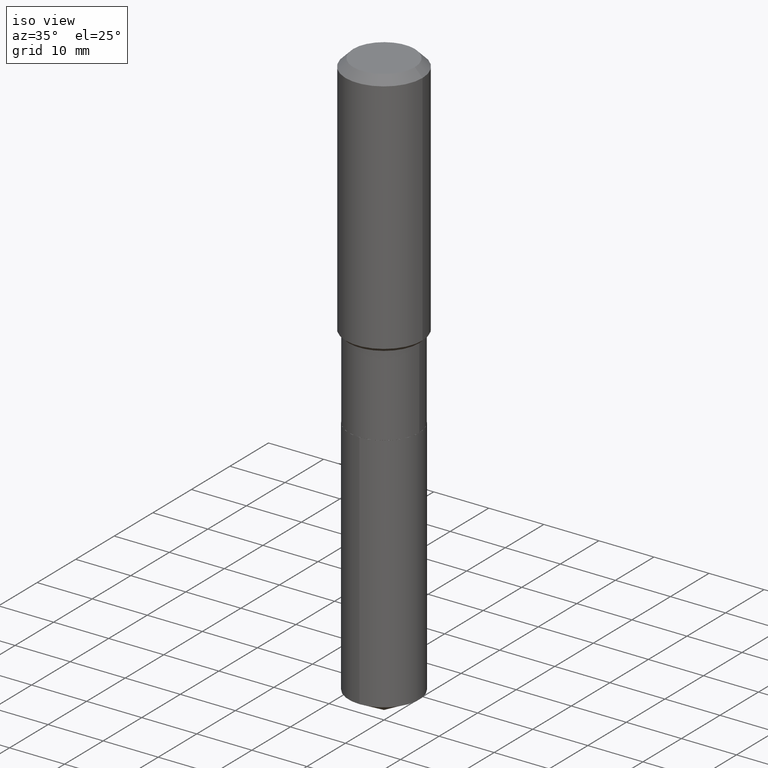
[diagram: clean part render]
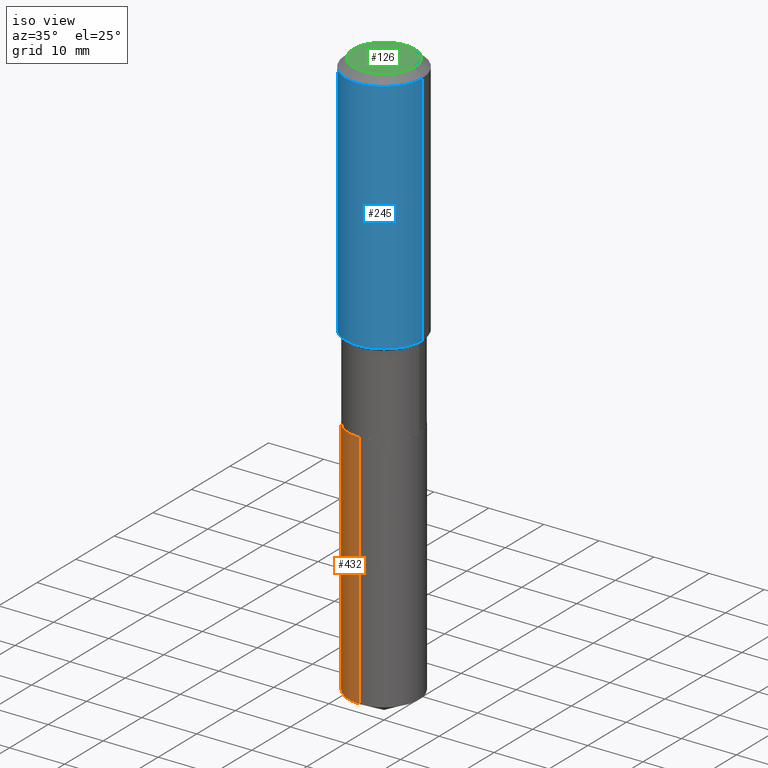
[diagram: same view with three faces highlighted in distinct colors, each labeled with its STEP entity id]
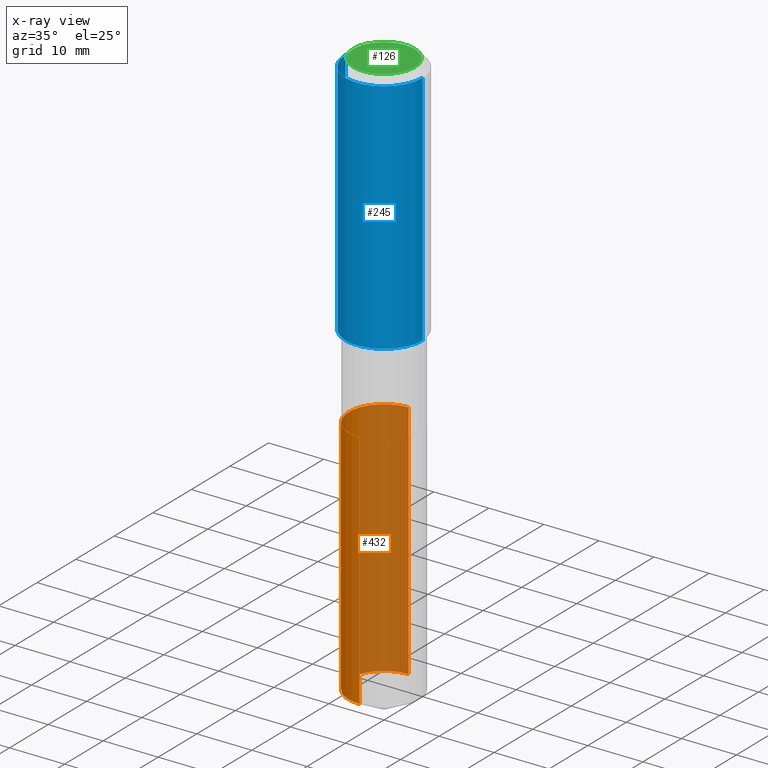
[diagram: x-ray of the same camera — body ghosted, the three highlighted faces saturated]
A machine part, iso view with three faces highlighted in distinct colors.
The next image is the same camera in x-ray (body ghosted, the three faces saturated) — at least one of them is partly hidden behind the body in this view.
Their STEP definitions:

[orange] entity #432 — the highlighted cylindrical surface (partial cylindrical patch) has radius 6.3995 mm, axis along (-0, 0, 1).
#1 = DIRECTION ( 'NONE',  ( -6.982962677686265922E-15, -1.000000000000000000, 4.337127197720600657E-15 ) ) ;
#8 = CARTESIAN_POINT ( 'NONE',  ( -1.759357446642997213E-15, -0.2519500000000082229, -2.354299999999999393 ) ) ;
#19 = EDGE_CURVE ( 'NONE', #355, #283, #35, .T. ) ;
#26 = DIRECTION ( 'NONE',  ( -2.445732278377951745E-29, 3.491104031667128479E-15, 1.000000000000000000 ) ) ;
#35 = CIRCLE ( 'NONE', #353, 0.2519500000000000073 ) ;
#38 = DIRECTION ( 'NONE',  ( -2.445732278377951745E-29, 3.491104031667128479E-15, 1.000000000000000000 ) ) ;
#67 = AXIS2_PLACEMENT_3D ( 'NONE', #373, #38, #1 ) ;
#95 = ORIENTED_EDGE ( 'NONE', *, *, #19, .F. ) ;
#109 = DIRECTION ( 'NONE',  ( -2.445732278377951745E-29, 3.491104031667128479E-15, 1.000000000000000000 ) ) ;
#113 = DIRECTION ( 'NONE',  ( -2.445732278377952025E-29, 3.491104031667128479E-15, 1.000000000000000000 ) ) ;
#140 = CARTESIAN_POINT ( 'NONE',  ( 5.757367210401668198E-29, -8.219994516038419081E-15, -2.354300000000000281 ) ) ;
#141 = VERTEX_POINT ( 'NONE', #301 ) ;
#148 = CARTESIAN_POINT ( 'NONE',  ( 1.790212422747629662E-15, 0.2519499999999917361, -2.354300000000001170 ) ) ;
#161 = CARTESIAN_POINT ( 'NONE',  ( 1.790212422747672261E-15, 0.2519499999999917361, -2.354300000000001170 ) ) ;
#167 = FACE_OUTER_BOUND ( 'NONE', #346, .T. ) ;
#171 = EDGE_CURVE ( 'NONE', #327, #283, #405, .T. ) ;
#203 = VECTOR ( 'NONE', #413, 39.37007874015748143 ) ;
#221 = ORIENTED_EDGE ( 'NONE', *, *, #293, .F. ) ;
#227 = CARTESIAN_POINT ( 'NONE',  ( -1.759357446642997213E-15, -0.2519500000000082229, -2.354299999999999393 ) ) ;
#232 = CARTESIAN_POINT ( 'NONE',  ( -1.759357446642955206E-15, -0.2519500000000142181, -4.078635808692890663 ) ) ;
#252 = CYLINDRICAL_SURFACE ( 'NONE', #268, 0.2519500000000000073 ) ;
#256 = DIRECTION ( 'NONE',  ( -6.982962677686265922E-15, -1.000000000000000000, 3.252845398290450098E-15 ) ) ;
#267 = VECTOR ( 'NONE', #113, 39.37007874015748143 ) ;
#268 = AXIS2_PLACEMENT_3D ( 'NONE', #336, #109, #333 ) ;
#283 = VERTEX_POINT ( 'NONE', #8 ) ;
#293 = EDGE_CURVE ( 'NONE', #141, #355, #488, .T. ) ;
#301 = CARTESIAN_POINT ( 'NONE',  ( 1.790212422747671867E-15, 0.2519499999999857409, -4.078635808692893328 ) ) ;
#327 = VERTEX_POINT ( 'NONE', #232 ) ;
#329 = EDGE_CURVE ( 'NONE', #141, #327, #435, .T. ) ;
#333 = DIRECTION ( 'NONE',  ( -6.982962677686265922E-15, -1.000000000000000000, 3.252845398290450098E-15 ) ) ;
#336 = CARTESIAN_POINT ( 'NONE',  ( 5.757367210401668198E-29, -8.219994516038419081E-15, -2.354300000000000281 ) ) ;
#346 = EDGE_LOOP ( 'NONE', ( #221, #375, #431, #95 ) ) ;
#353 = AXIS2_PLACEMENT_3D ( 'NONE', #140, #26, #256 ) ;
#355 = VERTEX_POINT ( 'NONE', #161 ) ;
#373 = CARTESIAN_POINT ( 'NONE',  ( 9.974630956484820377E-29, -1.423983020971417209E-14, -4.078635808692891551 ) ) ;
#375 = ORIENTED_EDGE ( 'NONE', *, *, #329, .T. ) ;
#405 = LINE ( 'NONE', #227, #203 ) ;
#413 = DIRECTION ( 'NONE',  ( -2.445732278377952025E-29, 3.491104031667128479E-15, 1.000000000000000000 ) ) ;
#431 = ORIENTED_EDGE ( 'NONE', *, *, #171, .T. ) ;
#432 = ADVANCED_FACE ( 'NONE', ( #167 ), #252, .T. ) ;
#435 = CIRCLE ( 'NONE', #67, 0.2519500000000000073 ) ;
#488 = LINE ( 'NONE', #148, #267 ) ;

[blue] entity #245 — the highlighted cylindrical surface (partial cylindrical patch) has radius 7.0002 mm, axis along (-0, 0, 1).
#21 = ORIENTED_EDGE ( 'NONE', *, *, #366, .F. ) ;
#23 = DIRECTION ( 'NONE',  ( -2.445468806185136877E-29, 3.491481338843145188E-15, 1.000000000000000000 ) ) ;
#29 = CARTESIAN_POINT ( 'NONE',  ( 0.2756000000000002337, -8.038612060485511055E-15, -1.751149999999999984 ) ) ;
#47 = VERTEX_POINT ( 'NONE', #397 ) ;
#50 = VERTEX_POINT ( 'NONE', #29 ) ;
#61 = AXIS2_PLACEMENT_3D ( 'NONE', #313, #189, #407 ) ;
#69 = EDGE_CURVE ( 'NONE', #150, #50, #480, .T. ) ;
#90 = LINE ( 'NONE', #390, #251 ) ;
#94 = AXIS2_PLACEMENT_3D ( 'NONE', #270, #343, #381 ) ;
#103 = VECTOR ( 'NONE', #130, 39.37007874015748143 ) ;
#105 = CARTESIAN_POINT ( 'NONE',  ( 4.282382699951101703E-29, -6.114107546515174524E-15, -1.751149999999999984 ) ) ;
#121 = ORIENTED_EDGE ( 'NONE', *, *, #296, .F. ) ;
#122 = LINE ( 'NONE', #318, #103 ) ;
#130 = DIRECTION ( 'NONE',  ( -2.445468806185136877E-29, 3.491481338843145188E-15, 1.000000000000000000 ) ) ;
#150 = VERTEX_POINT ( 'NONE', #400 ) ;
#189 = DIRECTION ( 'NONE',  ( -2.445468806185136597E-29, 3.491481338843145583E-15, 1.000000000000000000 ) ) ;
#191 = CARTESIAN_POINT ( 'NONE',  ( 0.2756000000000000116, -2.116954965367370658E-15, -0.05512000000000035621 ) ) ;
#239 = CYLINDRICAL_SURFACE ( 'NONE', #94, 0.2756000000000001227 ) ;
#245 = ADVANCED_FACE ( 'NONE', ( #341 ), #239, .T. ) ;
#251 = VECTOR ( 'NONE', #23, 39.37007874015748143 ) ;
#270 = CARTESIAN_POINT ( 'NONE',  ( 0.000000000000000000, 0.000000000000000000, 0.000000000000000000 ) ) ;
#271 = ORIENTED_EDGE ( 'NONE', *, *, #69, .T. ) ;
#285 = CIRCLE ( 'NONE', #61, 0.2756000000000000116 ) ;
#296 = EDGE_CURVE ( 'NONE', #47, #325, #285, .T. ) ;
#313 = CARTESIAN_POINT ( 'NONE',  ( 1.347942405969256063E-30, -1.924504513970354330E-16, -0.05512000000000035621 ) ) ;
#318 = CARTESIAN_POINT ( 'NONE',  ( -0.2756000000000001227, 1.958255779754836984E-15, -1.355658510874252567E-29 ) ) ;
#325 = VERTEX_POINT ( 'NONE', #191 ) ;
#330 = DIRECTION ( 'NONE',  ( 1.000000000000000000, -6.982962677686267499E-15, 0.000000000000000000 ) ) ;
#340 = AXIS2_PLACEMENT_3D ( 'NONE', #105, #447, #330 ) ;
#341 = FACE_OUTER_BOUND ( 'NONE', #450, .T. ) ;
#343 = DIRECTION ( 'NONE',  ( -2.445468806185136597E-29, 3.491481338843145583E-15, 1.000000000000000000 ) ) ;
#366 = EDGE_CURVE ( 'NONE', #150, #47, #122, .T. ) ;
#381 = DIRECTION ( 'NONE',  ( 1.000000000000000000, -6.982962677686267499E-15, 4.876176775795935793E-29 ) ) ;
#390 = CARTESIAN_POINT ( 'NONE',  ( 0.2756000000000001227, -1.924504513970336137E-15, 1.343874319409360548E-29 ) ) ;
#397 = CARTESIAN_POINT ( 'NONE',  ( -0.2756000000000000116, -1.195023219201267736E-15, -0.05512000000000035621 ) ) ;
#400 = CARTESIAN_POINT ( 'NONE',  ( -0.2756000000000002337, -4.155851766760337145E-15, -1.751149999999999984 ) ) ;
#407 = DIRECTION ( 'NONE',  ( 1.000000000000000000, -6.982962677686265922E-15, 0.000000000000000000 ) ) ;
#423 = EDGE_CURVE ( 'NONE', #50, #325, #90, .T. ) ;
#447 = DIRECTION ( 'NONE',  ( -2.445468806185136597E-29, 3.491481338843145583E-15, 1.000000000000000000 ) ) ;
#450 = EDGE_LOOP ( 'NONE', ( #21, #271, #457, #121 ) ) ;
#457 = ORIENTED_EDGE ( 'NONE', *, *, #423, .T. ) ;
#480 = CIRCLE ( 'NONE', #340, 0.2756000000000002337 ) ;

[green] entity #126 — the highlighted planar face has unit normal (0, -0, -1).
#4 = CIRCLE ( 'NONE', #15, 0.2204800000000000093 ) ;
#5 = ORIENTED_EDGE ( 'NONE', *, *, #376, .T. ) ;
#13 = AXIS2_PLACEMENT_3D ( 'NONE', #359, #68, #222 ) ;
#15 = AXIS2_PLACEMENT_3D ( 'NONE', #281, #56, #207 ) ;
#31 = CARTESIAN_POINT ( 'NONE',  ( -4.719860820353095009E-47, 6.738710358733624243E-33, 1.930043355456227170E-18 ) ) ;
#56 = DIRECTION ( 'NONE',  ( -2.445468806185136597E-29, 3.491481338843145583E-15, 1.000000000000000000 ) ) ;
#68 = DIRECTION ( 'NONE',  ( -2.445468806185136597E-29, 3.491481338843145583E-15, 1.000000000000000000 ) ) ;
#89 = VERTEX_POINT ( 'NONE', #219 ) ;
#100 = EDGE_LOOP ( 'NONE', ( #5, #129 ) ) ;
#101 = DIRECTION ( 'NONE',  ( 2.438088387897960049E-29, -3.491481338843145188E-15, -1.000000000000000000 ) ) ;
#126 = ADVANCED_FACE ( 'NONE', ( #326 ), #470, .F. ) ;
#129 = ORIENTED_EDGE ( 'NONE', *, *, #152, .T. ) ;
#134 = VERTEX_POINT ( 'NONE', #217 ) ;
#152 = EDGE_CURVE ( 'NONE', #89, #134, #309, .T. ) ;
#181 = DIRECTION ( 'NONE',  ( -1.000000000000000000, 6.982962677686265922E-15, -4.876176775795935793E-29 ) ) ;
#207 = DIRECTION ( 'NONE',  ( 1.000000000000000000, -6.982962677686266711E-15, 4.876132675269083677E-29 ) ) ;
#217 = CARTESIAN_POINT ( 'NONE',  ( -0.2204800000000000093, 1.635828836874783961E-15, 3.860086710901350968E-18 ) ) ;
#219 = CARTESIAN_POINT ( 'NONE',  ( 0.2204800000000000093, -1.797903149065768707E-15, 3.860086710924123164E-18 ) ) ;
#222 = DIRECTION ( 'NONE',  ( 1.000000000000000000, -6.982962677686266711E-15, 4.876132675269083677E-29 ) ) ;
#281 = CARTESIAN_POINT ( 'NONE',  ( -9.439721640706190018E-47, 1.347742071746724849E-32, 3.860086710912454339E-18 ) ) ;
#309 = CIRCLE ( 'NONE', #13, 0.2204800000000000093 ) ;
#326 = FACE_OUTER_BOUND ( 'NONE', #100, .T. ) ;
#359 = CARTESIAN_POINT ( 'NONE',  ( -9.439721640706190018E-47, 1.347742071746724849E-32, 3.860086710912454339E-18 ) ) ;
#376 = EDGE_CURVE ( 'NONE', #134, #89, #4, .T. ) ;
#452 = AXIS2_PLACEMENT_3D ( 'NONE', #31, #101, #181 ) ;
#470 = PLANE ( 'NONE',  #452 ) ;